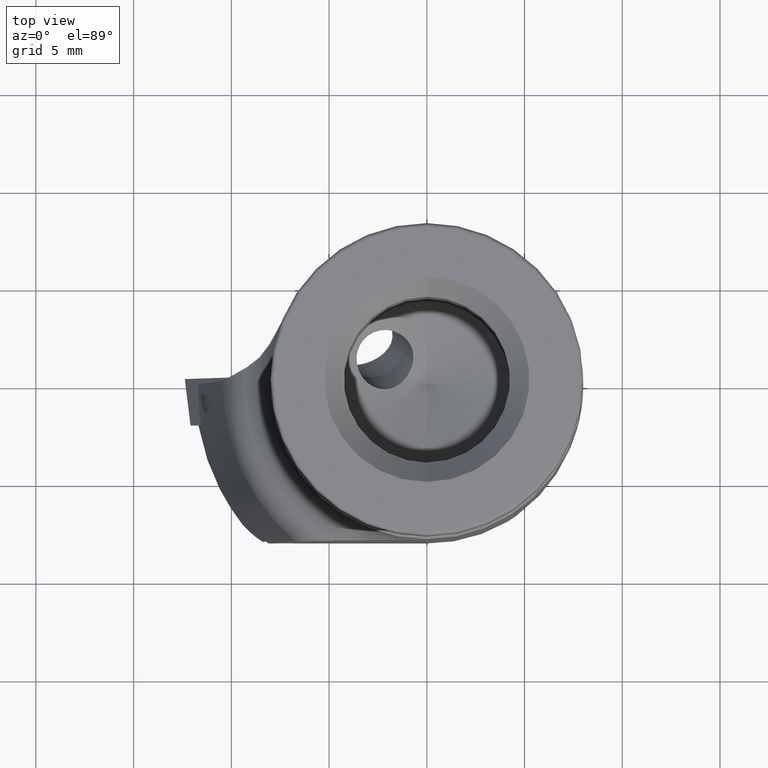
[diagram: clean part render]
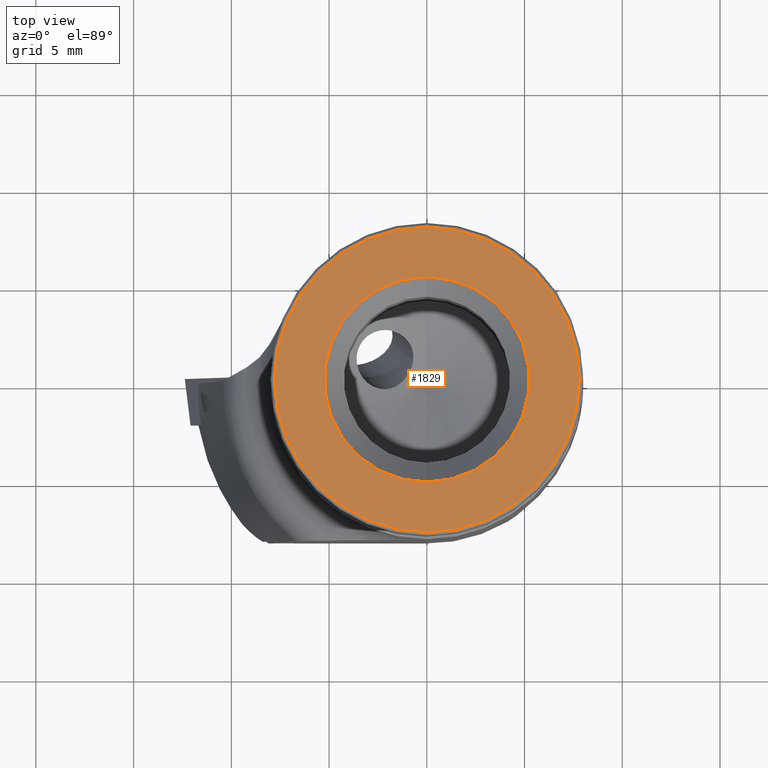
[diagram: same view with one face highlighted and labeled with its STEP entity id]
A machine part, top view. The second image highlights one B-rep face of the part: STEP entity #1829.
In plain terms, the highlighted planar face has unit normal (0, 0, 1).
Its self-contained STEP definition (entity closure, byte-faithful):
#767=EDGE_CURVE('NONE',#779,#1323,#2100,.T.);
#779=VERTEX_POINT('NONE',#2113);
#797=VERTEX_POINT('NONE',#2131);
#811=EDGE_CURVE('NONE',#1323,#779,#2145,.T.);
#891=EDGE_CURVE('NONE',#1919,#797,#2230,.T.);
#1323=VERTEX_POINT('NONE',#2715);
#1789=EDGE_CURVE('NONE',#797,#1919,#3227,.F.);
#1829=ADVANCED_FACE('NONE',(#3272,#3273),#3274,.T.);
#1919=VERTEX_POINT('NONE',#3370);
#2100=CIRCLE('',#3595,7.8);
#2113=CARTESIAN_POINT('',(0.0,-7.8,0.0));
#2131=CARTESIAN_POINT('',(6.4293956955236E-016,5.25,-7.87373885897475E-032));
#2145=CIRCLE('',#3661,7.8);
#2230=CIRCLE('',#3801,5.25);
#2715=CARTESIAN_POINT('',(9.67470971326409E-016,7.8,-1.18481022830287E-031));
#3227=CIRCLE('',#6258,5.25);
#3272=FACE_OUTER_BOUND('',#6365,.T.);
#3273=FACE_BOUND('',#6366,.T.);
#3274=PLANE('',#6367);
#3370=CARTESIAN_POINT('',(0.0,-5.25,0.0));
#3595=AXIS2_PLACEMENT_3D('',#6828,#6829,#6830);
#3661=AXIS2_PLACEMENT_3D('',#6858,#6859,#6860);
#3801=AXIS2_PLACEMENT_3D('',#6961,#6962,#6963);
#6258=AXIS2_PLACEMENT_3D('',#8175,#8176,#8177);
#6365=EDGE_LOOP('',(#8223,#8224));
#6366=EDGE_LOOP('',(#8225,#8226));
#6367=AXIS2_PLACEMENT_3D('',#8227,#8228,#8229);
#6828=CARTESIAN_POINT('',(0.0,0.0,0.0));
#6829=DIRECTION('',(1.22464679914735E-016,-0.0,1.0));
#6830=DIRECTION('',(0.0,1.0,0.0));
#6858=CARTESIAN_POINT('',(0.0,0.0,0.0));
#6859=DIRECTION('',(1.22464679914735E-016,-0.0,1.0));
#6860=DIRECTION('',(0.0,1.0,0.0));
#6961=CARTESIAN_POINT('',(0.0,0.0,0.0));
#6962=DIRECTION('',(-1.22464679914735E-016,-0.0,-1.0));
#6963=DIRECTION('',(0.0,-1.0,0.0));
#8175=CARTESIAN_POINT('',(0.0,0.0,0.0));
#8176=DIRECTION('',(1.22464679914735E-016,0.0,1.0));
#8177=DIRECTION('',(0.0,-1.0,0.0));
#8223=ORIENTED_EDGE('',*,*,#767,.T.);
#8224=ORIENTED_EDGE('',*,*,#811,.T.);
#8225=ORIENTED_EDGE('',*,*,#891,.T.);
#8226=ORIENTED_EDGE('',*,*,#1789,.T.);
#8227=CARTESIAN_POINT('',(0.0,0.0,0.0));
#8228=DIRECTION('',(1.22464679914735E-016,0.0,1.0));
#8229=DIRECTION('',(0.0,-1.0,0.0));